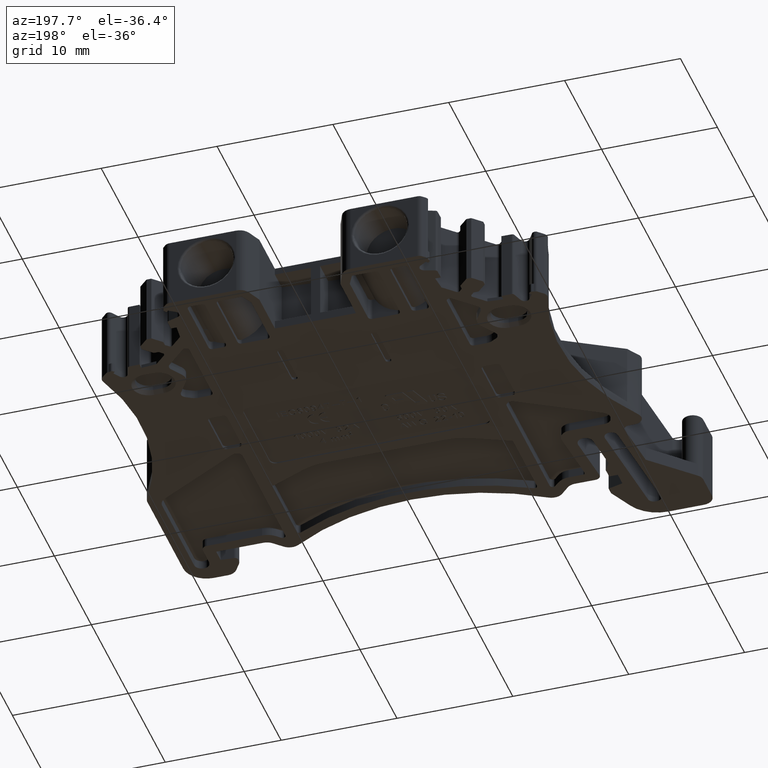
[diagram: clean part render]
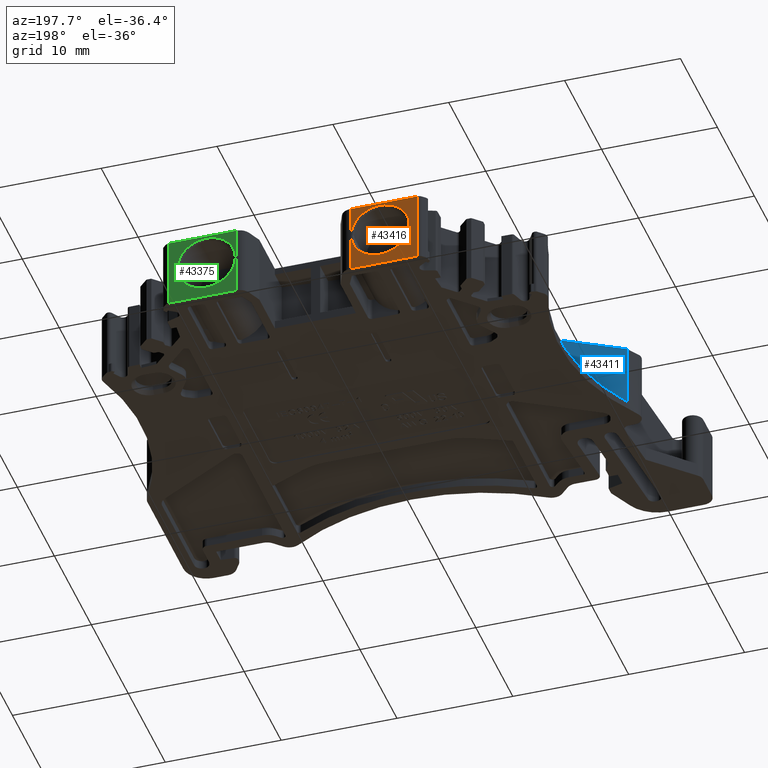
[diagram: same view with three faces highlighted in distinct colors, each labeled with its STEP entity id]
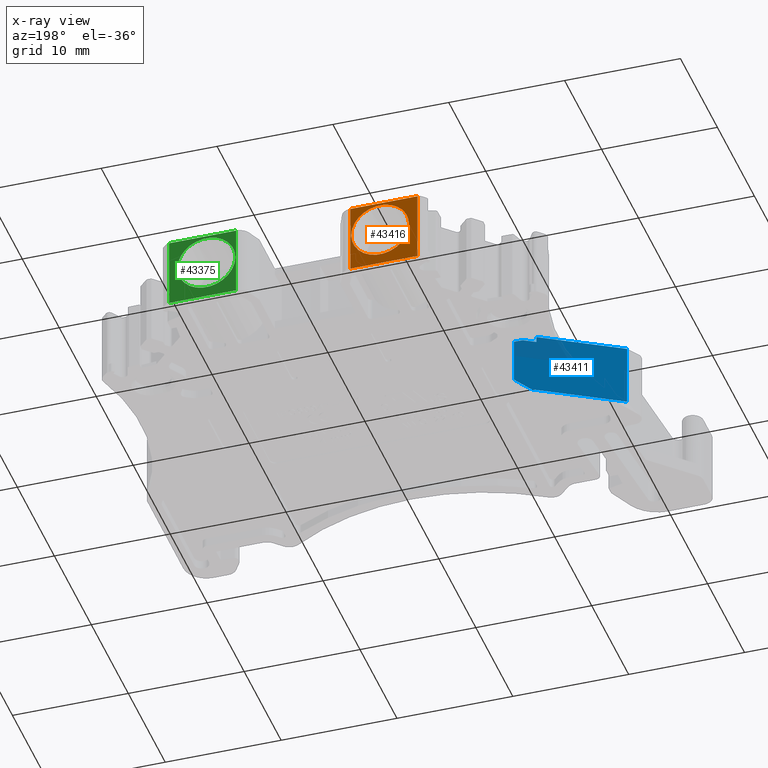
[diagram: x-ray of the same camera — body ghosted, the three highlighted faces saturated]
A machine part, auxiliary view with three faces highlighted in distinct colors.
The next image is the same camera in x-ray (body ghosted, the three faces saturated) — at least one of them is partly hidden behind the body in this view.
Their STEP definitions:

[orange] entity #43416 — the highlighted planar face has unit normal (-0, 1, 0).
#661=CIRCLE('',#45915,2.5);
#12070=ORIENTED_EDGE('',*,*,#19043,.T.);
#12071=ORIENTED_EDGE('',*,*,#19071,.T.);
#12072=ORIENTED_EDGE('',*,*,#19069,.F.);
#12073=ORIENTED_EDGE('',*,*,#19072,.F.);
#12074=ORIENTED_EDGE('',*,*,#19073,.F.);
#19043=EDGE_CURVE('',#23322,#23322,#661,.T.);
#19069=EDGE_CURVE('',#23337,#23338,#28993,.T.);
#19071=EDGE_CURVE('',#23339,#23338,#28994,.T.);
#19072=EDGE_CURVE('',#23340,#23337,#28995,.T.);
#19073=EDGE_CURVE('',#23339,#23340,#28996,.T.);
#23322=VERTEX_POINT('',#69115);
#23337=VERTEX_POINT('',#69190);
#23338=VERTEX_POINT('',#69192);
#23339=VERTEX_POINT('',#69196);
#23340=VERTEX_POINT('',#69198);
#28993=LINE('',#69191,#34687);
#28994=LINE('',#69195,#34688);
#28995=LINE('',#69197,#34689);
#28996=LINE('',#69199,#34690);
#34687=VECTOR('',#56335,1000.);
#34688=VECTOR('',#56340,1000.);
#34689=VECTOR('',#56341,1000.);
#34690=VECTOR('',#56342,1000.);
#37026=EDGE_LOOP('',(#12070));
#37027=EDGE_LOOP('',(#12071,#12072,#12073,#12074));
#39282=FACE_BOUND('',#37026,.T.);
#39283=FACE_BOUND('',#37027,.T.);
#41289=PLANE('',#45934);
#43416=ADVANCED_FACE('',(#39282,#39283),#41289,.T.);
#45915=AXIS2_PLACEMENT_3D('',#69114,#56288,#56289);
#45934=AXIS2_PLACEMENT_3D('',#69194,#56338,#56339);
#56288=DIRECTION('',(0.,-1.,0.));
#56289=DIRECTION('',(-1.,0.,0.));
#56335=DIRECTION('',(1.601633215853E-14,0.,1.));
#56338=DIRECTION('',(-1.517894828471E-13,1.,0.));
#56339=DIRECTION('',(-1.,-1.517894828471E-13,0.));
#56340=DIRECTION('',(1.,-5.251994221995E-13,0.));
#56341=DIRECTION('',(1.,-5.245858714724E-13,0.));
#56342=DIRECTION('',(-4.603967480478E-13,0.,-1.));
#69114=CARTESIAN_POINT('',(-7.488558647079,29.35000353683,-0.2));
#69115=CARTESIAN_POINT('',(-9.988558647079,29.35000353683,-0.2));
#69190=CARTESIAN_POINT('',(-4.915813360855,29.35000353683,-3.6));
#69191=CARTESIAN_POINT('',(-4.915813360855,29.35000353683,-3.6));
#69192=CARTESIAN_POINT('',(-4.915813360942,29.35000353682,2.5));
#69194=CARTESIAN_POINT('',(10.72911163022,29.35000353683,-2.5));
#69195=CARTESIAN_POINT('',(-10.70622892589,29.35000353683,2.5));
#69196=CARTESIAN_POINT('',(-10.70622892589,29.35000353683,2.5));
#69197=CARTESIAN_POINT('',(-10.7062289259,29.35000353683,-3.6));
#69198=CARTESIAN_POINT('',(-10.70622892593,29.35000353683,-3.6));
#69199=CARTESIAN_POINT('',(-10.70622892589,29.35000353683,2.5));

[blue] entity #43411 — the highlighted planar face has unit normal (0.5, -0.866, 0).
#12046=ORIENTED_EDGE('',*,*,#19057,.F.);
#12047=ORIENTED_EDGE('',*,*,#19059,.F.);
#12048=ORIENTED_EDGE('',*,*,#19060,.F.);
#12049=ORIENTED_EDGE('',*,*,#19061,.T.);
#12050=ORIENTED_EDGE('',*,*,#19062,.F.);
#12051=ORIENTED_EDGE('',*,*,#13474,.F.);
#12052=ORIENTED_EDGE('',*,*,#19058,.T.);
#12053=ORIENTED_EDGE('',*,*,#13462,.T.);
#13462=EDGE_CURVE('',#19606,#19605,#23726,.T.);
#13474=EDGE_CURVE('',#19614,#19615,#23738,.T.);
#19057=EDGE_CURVE('',#23331,#19605,#28982,.T.);
#19058=EDGE_CURVE('',#19614,#19606,#28983,.T.);
#19059=EDGE_CURVE('',#23332,#23331,#28984,.T.);
#19060=EDGE_CURVE('',#23333,#23332,#28985,.T.);
#19061=EDGE_CURVE('',#23333,#23334,#28986,.T.);
#19062=EDGE_CURVE('',#19615,#23334,#28987,.T.);
#19605=VERTEX_POINT('',#57641);
#19606=VERTEX_POINT('',#57643);
#19614=VERTEX_POINT('',#57664);
#19615=VERTEX_POINT('',#57666);
#23331=VERTEX_POINT('',#69166);
#23332=VERTEX_POINT('',#69172);
#23333=VERTEX_POINT('',#69174);
#23334=VERTEX_POINT('',#69176);
#23726=LINE('',#57642,#29420);
#23738=LINE('',#57665,#29432);
#28982=LINE('',#69167,#34676);
#28983=LINE('',#69169,#34677);
#28984=LINE('',#69171,#34678);
#28985=LINE('',#69173,#34679);
#28986=LINE('',#69175,#34680);
#28987=LINE('',#69177,#34681);
#29420=VECTOR('',#46650,1000.);
#29432=VECTOR('',#46666,1000.);
#34676=VECTOR('',#56310,1000.);
#34677=VECTOR('',#56313,1000.);
#34678=VECTOR('',#56316,1000.);
#34679=VECTOR('',#56317,1000.);
#34680=VECTOR('',#56318,1000.);
#34681=VECTOR('',#56319,1000.);
#37021=EDGE_LOOP('',(#12046,#12047,#12048,#12049,#12050,#12051,#12052,#12053));
#39277=FACE_BOUND('',#37021,.T.);
#41285=PLANE('',#45927);
#43411=ADVANCED_FACE('',(#39277),#41285,.F.);
#45927=AXIS2_PLACEMENT_3D('',#69170,#56314,#56315);
#46650=DIRECTION('',(-0.768473279367703,-0.443678254708401,-0.461083967620601));
#46666=DIRECTION('',(-0.810962258428835,-0.46820927820752,0.350885005670515));
#56310=DIRECTION('',(0.866025403784317,0.50000000000021,-6.80306402403714E-14));
#56313=DIRECTION('',(-1.240484780838E-13,-1.249673556992E-13,-1.));
#56314=DIRECTION('',(0.50000000000021,-0.866025403784317,0.));
#56315=DIRECTION('',(0.866025403784317,0.50000000000021,0.));
#56316=DIRECTION('',(0.,1.167790144421E-14,-1.));
#56317=DIRECTION('',(-0.866025403784386,-0.500000000000092,0.));
#56318=DIRECTION('',(0.,3.019806626982E-13,-1.));
#56319=DIRECTION('',(-0.866025403784162,-0.500000000000478,-4.46023929350981E-13));
#57641=CARTESIAN_POINT('',(-13.71518937562,7.998694359222,-2.900000000001));
#57642=CARTESIAN_POINT('',(-12.4517098203,8.728164620602,-2.141912266809));
#57643=CARTESIAN_POINT('',(-12.4517098203,8.728164620602,-2.141912266809));
#57664=CARTESIAN_POINT('',(-12.4517098203,8.728164620603,1.724449933251));
#57665=CARTESIAN_POINT('',(-12.4517098203,8.728164620603,1.724449933251));
#57666=CARTESIAN_POINT('',(-13.08855864778,8.360479778623,2.000000000001));
#69166=CARTESIAN_POINT('',(-20.70822908435,3.961261000931,-2.9));
#69167=CARTESIAN_POINT('',(-20.70822908435,3.961261000931,-2.9));
#69169=CARTESIAN_POINT('',(-12.4517098203,8.728164620603,1.724449933251));
#69170=CARTESIAN_POINT('',(-20.70822908435,3.961261000931,-2.));
#69171=CARTESIAN_POINT('',(-20.70822908435,3.961261000931,2.5));
#69172=CARTESIAN_POINT('',(-20.70822908435,3.961261000931,2.5));
#69173=CARTESIAN_POINT('',(-14.1,7.776523841648,2.5));
#69174=CARTESIAN_POINT('',(-14.1,7.776523841648,2.5));
#69175=CARTESIAN_POINT('',(-14.1,7.776523841648,2.5));
#69176=CARTESIAN_POINT('',(-14.1,7.776523841648,2.));
#69177=CARTESIAN_POINT('',(-13.08855864778,8.360479778623,2.000000000001));

[green] entity #43375 — the highlighted planar face has unit normal (-0, 1, 0).
#632=CIRCLE('',#45856,2.5);
#11889=ORIENTED_EDGE('',*,*,#18960,.T.);
#11890=ORIENTED_EDGE('',*,*,#18961,.F.);
#11891=ORIENTED_EDGE('',*,*,#18835,.F.);
#11892=ORIENTED_EDGE('',*,*,#18962,.T.);
#11893=ORIENTED_EDGE('',*,*,#18958,.F.);
#18835=EDGE_CURVE('',#23186,#23187,#28841,.T.);
#18958=EDGE_CURVE('',#23268,#23269,#28936,.T.);
#18960=EDGE_CURVE('',#23270,#23270,#632,.T.);
#18961=EDGE_CURVE('',#23187,#23268,#28937,.T.);
#18962=EDGE_CURVE('',#23186,#23269,#28938,.T.);
#23186=VERTEX_POINT('',#68667);
#23187=VERTEX_POINT('',#68668);
#23268=VERTEX_POINT('',#68918);
#23269=VERTEX_POINT('',#68920);
#23270=VERTEX_POINT('',#68924);
#28841=LINE('',#68666,#34535);
#28936=LINE('',#68919,#34630);
#28937=LINE('',#68925,#34631);
#28938=LINE('',#68926,#34632);
#34535=VECTOR('',#55891,1000.);
#34630=VECTOR('',#56120,1000.);
#34631=VECTOR('',#56127,1000.);
#34632=VECTOR('',#56128,1000.);
#36980=EDGE_LOOP('',(#11889));
#36981=EDGE_LOOP('',(#11890,#11891,#11892,#11893));
#39236=FACE_BOUND('',#36980,.T.);
#39237=FACE_BOUND('',#36981,.T.);
#41269=PLANE('',#45855);
#43375=ADVANCED_FACE('',(#39236,#39237),#41269,.T.);
#45855=AXIS2_PLACEMENT_3D('',#68922,#56123,#56124);
#45856=AXIS2_PLACEMENT_3D('',#68923,#56125,#56126);
#55891=DIRECTION('',(-4.513693608312E-14,0.,-1.));
#56120=DIRECTION('',(2.044266395507E-13,0.,1.));
#56123=DIRECTION('',(-1.517894828471E-13,1.,0.));
#56124=DIRECTION('',(-1.,-1.517894828471E-13,0.));
#56125=DIRECTION('',(0.,-1.,0.));
#56126=DIRECTION('',(1.,0.,0.));
#56127=DIRECTION('',(1.,6.258217414172E-13,0.));
#56128=DIRECTION('',(1.,6.258217414171E-13,0.));
#68666=CARTESIAN_POINT('',(4.938696065347,29.35000353683,2.5));
#68667=CARTESIAN_POINT('',(4.938696065347,29.35000353683,2.5));
#68668=CARTESIAN_POINT('',(4.938696065435,29.35000353682,-3.6));
#68918=CARTESIAN_POINT('',(10.72911163028,29.35000353683,-3.6));
#68919=CARTESIAN_POINT('',(10.72911163028,29.35000353683,-3.6));
#68920=CARTESIAN_POINT('',(10.7291116303,29.35000353683,2.5));
#68922=CARTESIAN_POINT('',(10.72911163022,29.35000353683,-2.5));
#68923=CARTESIAN_POINT('',(7.511441352921,29.35000353683,-0.2));
#68924=CARTESIAN_POINT('',(10.011441352921,29.35000353683,-0.2));
#68925=CARTESIAN_POINT('',(4.938696065346,29.35000353683,-3.6));
#68926=CARTESIAN_POINT('',(4.938696065347,29.35000353683,2.5));